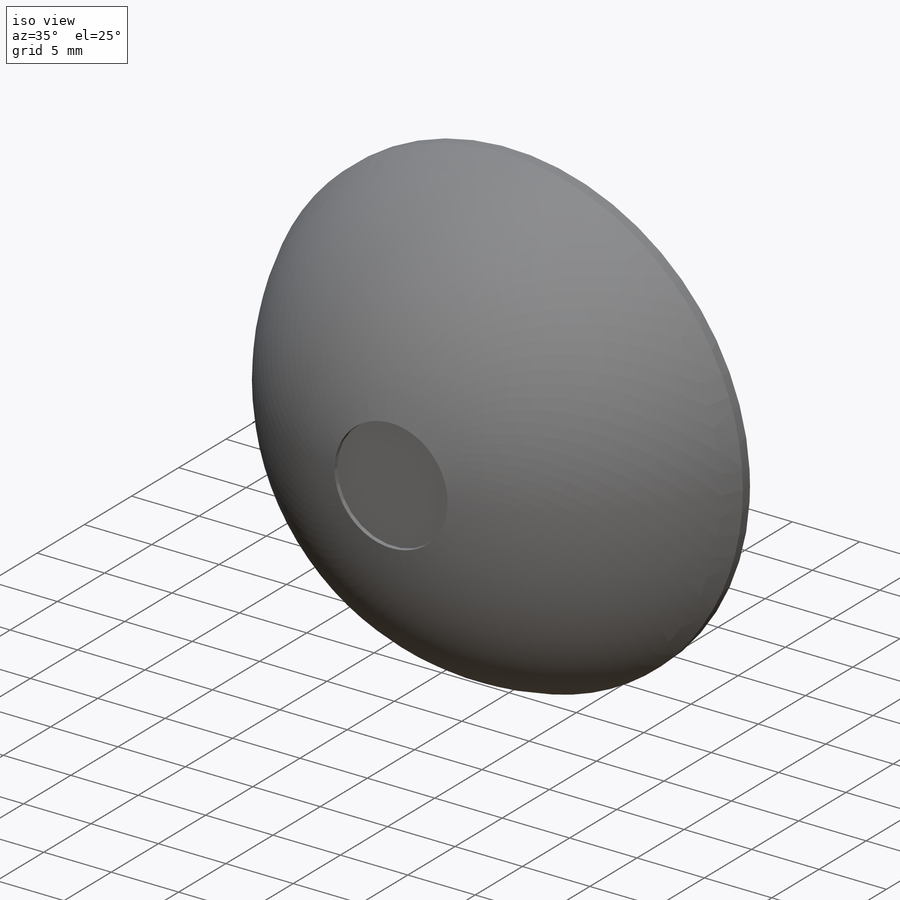
[diagram: iso view]
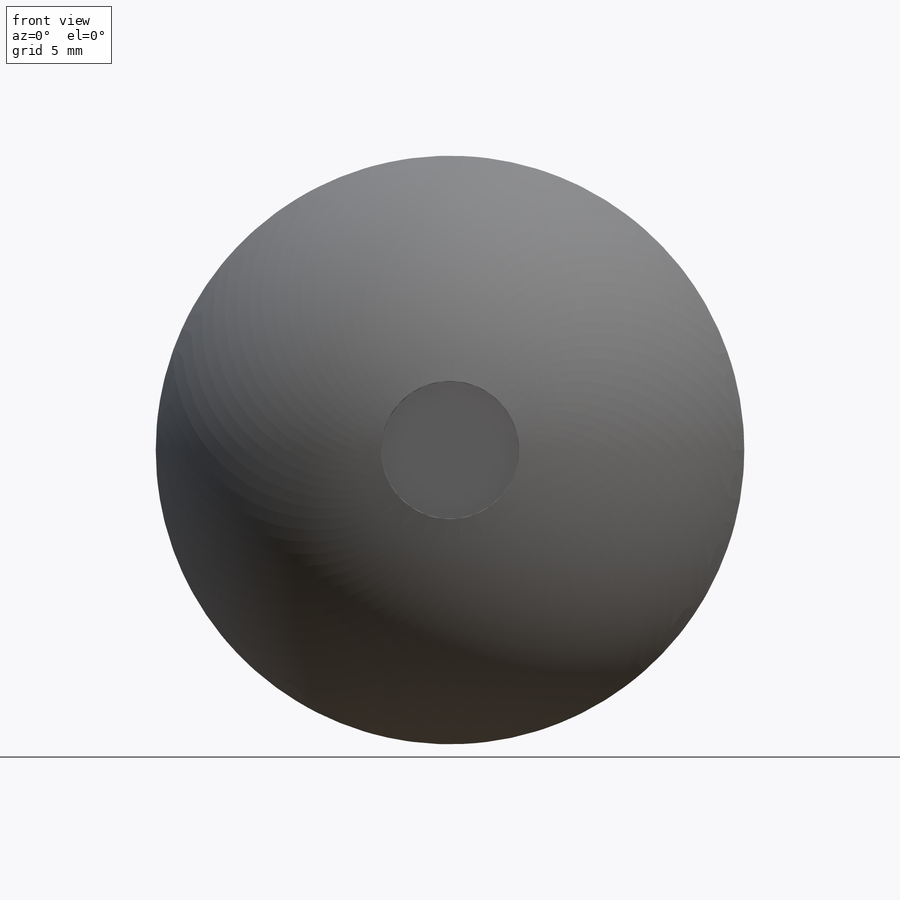
[diagram: front view]
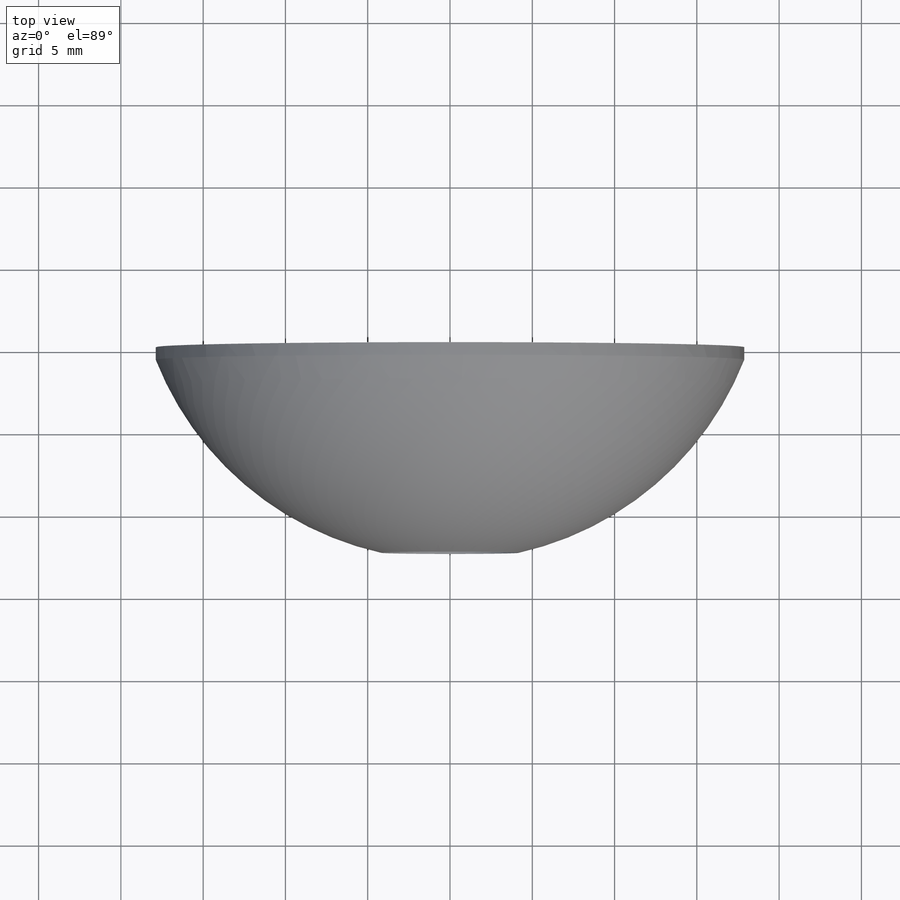
[diagram: top view]
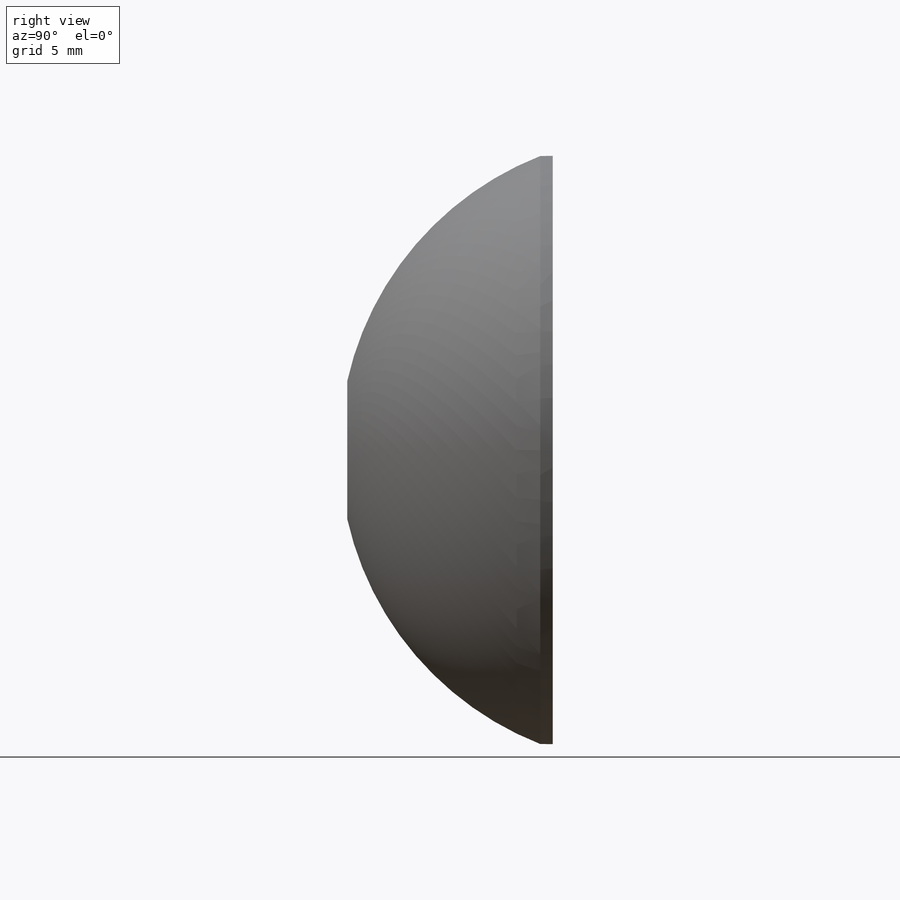
[diagram: right view]
SOLIDWORKS PART (.sldprt)
format: sldprt  version: not decoded by parser v0  size: 195,584 bytes
history: native  units: mm
features: sketch x3, cut_extrude x2, material x1, extrude x1, dome x1, plane x1, shell x1 (+16 scaffold rows collapsed)
feature tree (26):
  scaffold x16  (default folders/planes/origin — collapsed)
  material  "Material <not specified>"
  sketch  "Sketch3"  dims[D1=35.7632mm]
  extrude  "Boss-Extrude2"  Depth=0.762mm
  dome  "Dome1"
  plane  "Plane1"  Offset=12.192mm
  sketch  "Sketch4"  dims[D1=10.16mm D2=0.889mm]
  cut_extrude  "Cut-Extrude1"  Depth=1.016mm
  sketch  "Sketch5"  dims[D1=34.7472mm]
  cut_extrude  "Cut-Extrude2"  Depth=1.27mm
  shell  "Shell3"  Thickness=0.508mm
decode coverage: 7 of 8 modeling features carry decoded parameters
note: suppression state not decoded; provenance and decode notes live in map.json
